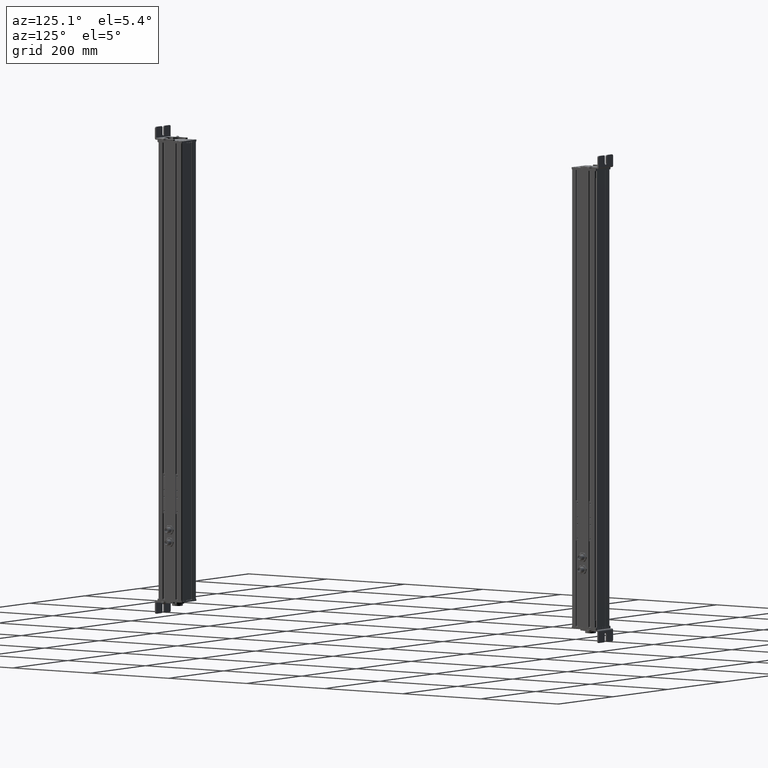
[diagram: clean part render]
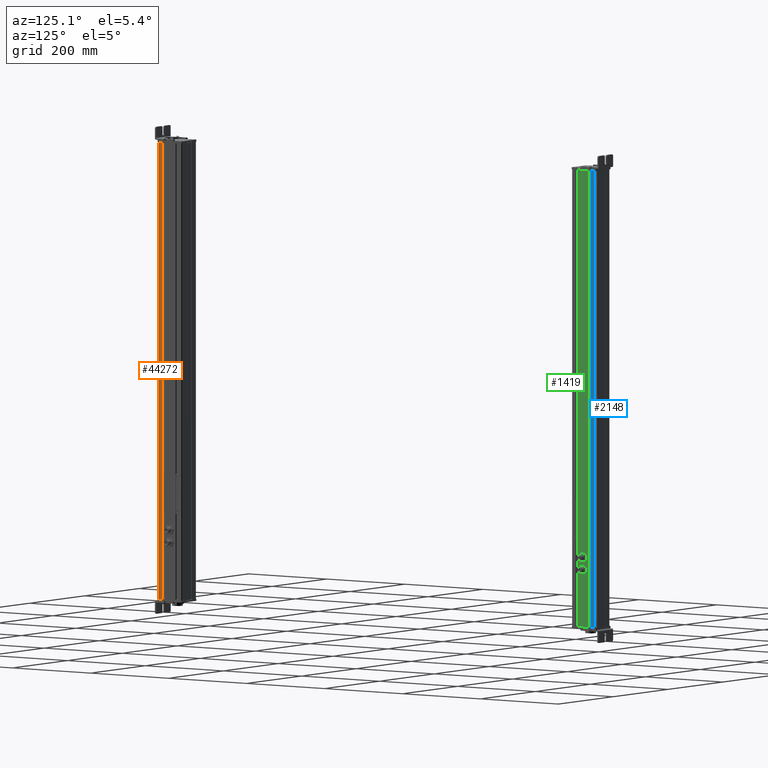
[diagram: same view with three faces highlighted in distinct colors, each labeled with its STEP entity id]
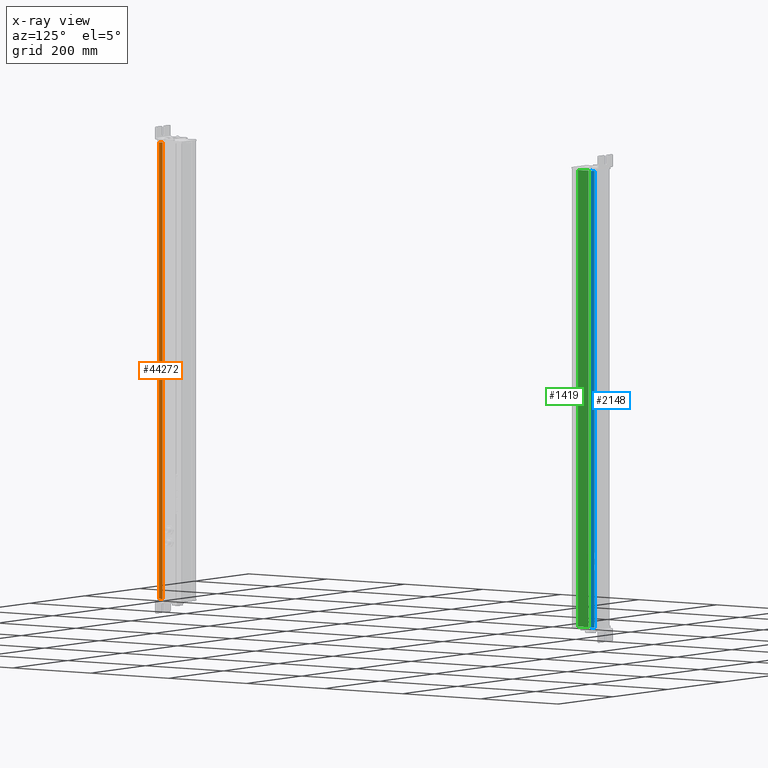
[diagram: x-ray of the same camera — body ghosted, the three highlighted faces saturated]
A machine part, auxiliary view with three faces highlighted in distinct colors.
The next image is the same camera in x-ray (body ghosted, the three faces saturated) — at least one of them is partly hidden behind the body in this view.
Their STEP definitions:

[orange] entity #44272 — the highlighted planar face has unit normal (1, 0, 0).
#44220=CARTESIAN_POINT('Vertex',(666.195883661,124.112001771,0.)) ;
#44223=CARTESIAN_POINT('Line Origine',(666.195883661,124.112001771,481.)) ;
#44227=CARTESIAN_POINT('Vertex',(666.195883661,124.112001771,962.)) ;
#44242=CARTESIAN_POINT('Axis2P3D Location',(666.195883662,171.710394004,0.)) ;
#44247=CARTESIAN_POINT('Line Origine',(666.195883662,128.589896023,0.)) ;
#44251=CARTESIAN_POINT('Vertex',(666.195883662,133.067790275,0.)) ;
#44254=CARTESIAN_POINT('Line Origine',(666.195883662,133.067790275,481.)) ;
#44258=CARTESIAN_POINT('Vertex',(666.195883662,133.067790275,962.)) ;
#44261=CARTESIAN_POINT('Line Origine',(666.195883662,128.589896023,962.)) ;
#44224=DIRECTION('Vector Direction',(0.,0.,1.)) ;
#44243=DIRECTION('Axis2P3D Direction',(1.,0.,0.)) ;
#44244=DIRECTION('Axis2P3D XDirection',(0.,1.,0.)) ;
#44248=DIRECTION('Vector Direction',(0.,1.,0.)) ;
#44255=DIRECTION('Vector Direction',(0.,0.,1.)) ;
#44262=DIRECTION('Vector Direction',(0.,1.,0.)) ;
#44245=AXIS2_PLACEMENT_3D('Plane Axis2P3D',#44242,#44243,#44244) ;
#44267=ORIENTED_EDGE('',*,*,#44229,.F.) ;
#44268=ORIENTED_EDGE('',*,*,#44253,.T.) ;
#44269=ORIENTED_EDGE('',*,*,#44260,.T.) ;
#44270=ORIENTED_EDGE('',*,*,#44265,.F.) ;
#44225=VECTOR('Line Direction',#44224,1.) ;
#44249=VECTOR('Line Direction',#44248,1.) ;
#44256=VECTOR('Line Direction',#44255,1.) ;
#44263=VECTOR('Line Direction',#44262,1.) ;
#44272=ADVANCED_FACE('Body.2',(#44271),#44246,.T.) ;
#44229=EDGE_CURVE('',#44221,#44228,#44226,.T.) ;
#44253=EDGE_CURVE('',#44221,#44252,#44250,.T.) ;
#44260=EDGE_CURVE('',#44252,#44259,#44257,.T.) ;
#44265=EDGE_CURVE('',#44228,#44259,#44264,.T.) ;
#44266=EDGE_LOOP('',(#44267,#44268,#44269,#44270)) ;
#44271=FACE_OUTER_BOUND('',#44266,.T.) ;
#44226=LINE('Line',#44223,#44225) ;
#44250=LINE('Line',#44247,#44249) ;
#44257=LINE('Line',#44254,#44256) ;
#44264=LINE('Line',#44261,#44263) ;
#44246=PLANE('Plane',#44245) ;
#44221=VERTEX_POINT('',#44220) ;
#44228=VERTEX_POINT('',#44227) ;
#44252=VERTEX_POINT('',#44251) ;
#44259=VERTEX_POINT('',#44258) ;

[blue] entity #2148 — the highlighted planar face has unit normal (1, 0, 0).
#660=CARTESIAN_POINT('Axis2P3D Location',(613.195548937,133.067790275,0.)) ;
#2101=CARTESIAN_POINT('Vertex',(613.195548938,133.067790275,0.)) ;
#2104=CARTESIAN_POINT('Line Origine',(613.195548938,133.067790275,481.)) ;
#2108=CARTESIAN_POINT('Vertex',(613.195548938,133.067790275,962.)) ;
#2123=CARTESIAN_POINT('Line Origine',(613.195548937,128.589896023,0.)) ;
#2127=CARTESIAN_POINT('Vertex',(613.195548937,124.112001771,0.)) ;
#2130=CARTESIAN_POINT('Line Origine',(613.195548937,124.112001771,481.)) ;
#2134=CARTESIAN_POINT('Vertex',(613.195548937,124.112001771,962.)) ;
#2137=CARTESIAN_POINT('Line Origine',(613.195548937,128.589896023,962.)) ;
#661=DIRECTION('Axis2P3D Direction',(-1.,0.,0.)) ;
#662=DIRECTION('Axis2P3D XDirection',(0.,-1.,0.)) ;
#2105=DIRECTION('Vector Direction',(0.,0.,1.)) ;
#2124=DIRECTION('Vector Direction',(0.,-1.,0.)) ;
#2131=DIRECTION('Vector Direction',(0.,0.,1.)) ;
#2138=DIRECTION('Vector Direction',(0.,-1.,0.)) ;
#663=AXIS2_PLACEMENT_3D('Plane Axis2P3D',#660,#661,#662) ;
#2143=ORIENTED_EDGE('',*,*,#2110,.F.) ;
#2144=ORIENTED_EDGE('',*,*,#2129,.T.) ;
#2145=ORIENTED_EDGE('',*,*,#2136,.T.) ;
#2146=ORIENTED_EDGE('',*,*,#2141,.F.) ;
#2106=VECTOR('Line Direction',#2105,1.) ;
#2125=VECTOR('Line Direction',#2124,1.) ;
#2132=VECTOR('Line Direction',#2131,1.) ;
#2139=VECTOR('Line Direction',#2138,1.) ;
#2148=ADVANCED_FACE('Body.2',(#2147),#664,.T.) ;
#2110=EDGE_CURVE('',#2102,#2109,#2107,.T.) ;
#2129=EDGE_CURVE('',#2102,#2128,#2126,.T.) ;
#2136=EDGE_CURVE('',#2128,#2135,#2133,.T.) ;
#2141=EDGE_CURVE('',#2109,#2135,#2140,.T.) ;
#2142=EDGE_LOOP('',(#2143,#2144,#2145,#2146)) ;
#2147=FACE_OUTER_BOUND('',#2142,.T.) ;
#2107=LINE('Line',#2104,#2106) ;
#2126=LINE('Line',#2123,#2125) ;
#2133=LINE('Line',#2130,#2132) ;
#2140=LINE('Line',#2137,#2139) ;
#664=PLANE('Plane',#663) ;
#2102=VERTEX_POINT('',#2101) ;
#2109=VERTEX_POINT('',#2108) ;
#2128=VERTEX_POINT('',#2127) ;
#2135=VERTEX_POINT('',#2134) ;

[green] entity #1419 — the highlighted planar face has unit normal (1, 0, 0).
#660=CARTESIAN_POINT('Axis2P3D Location',(613.195548937,133.067790275,0.)) ;
#1372=CARTESIAN_POINT('Vertex',(613.195548938,166.010394004,0.)) ;
#1375=CARTESIAN_POINT('Line Origine',(613.195548938,166.010394004,481.)) ;
#1379=CARTESIAN_POINT('Vertex',(613.195548938,166.010394004,962.)) ;
#1394=CARTESIAN_POINT('Line Origine',(613.195548937,152.38909214,0.)) ;
#1398=CARTESIAN_POINT('Vertex',(613.195548937,138.767790274,0.)) ;
#1401=CARTESIAN_POINT('Line Origine',(613.195548937,138.767790274,481.)) ;
#1405=CARTESIAN_POINT('Vertex',(613.195548937,138.767790274,962.)) ;
#1408=CARTESIAN_POINT('Line Origine',(613.195548937,152.38909214,962.)) ;
#661=DIRECTION('Axis2P3D Direction',(-1.,0.,0.)) ;
#662=DIRECTION('Axis2P3D XDirection',(0.,-1.,0.)) ;
#1376=DIRECTION('Vector Direction',(0.,0.,1.)) ;
#1395=DIRECTION('Vector Direction',(0.,-1.,0.)) ;
#1402=DIRECTION('Vector Direction',(0.,0.,1.)) ;
#1409=DIRECTION('Vector Direction',(0.,-1.,0.)) ;
#663=AXIS2_PLACEMENT_3D('Plane Axis2P3D',#660,#661,#662) ;
#1414=ORIENTED_EDGE('',*,*,#1381,.F.) ;
#1415=ORIENTED_EDGE('',*,*,#1400,.T.) ;
#1416=ORIENTED_EDGE('',*,*,#1407,.T.) ;
#1417=ORIENTED_EDGE('',*,*,#1412,.F.) ;
#1377=VECTOR('Line Direction',#1376,1.) ;
#1396=VECTOR('Line Direction',#1395,1.) ;
#1403=VECTOR('Line Direction',#1402,1.) ;
#1410=VECTOR('Line Direction',#1409,1.) ;
#1419=ADVANCED_FACE('Body.2',(#1418),#664,.T.) ;
#1381=EDGE_CURVE('',#1373,#1380,#1378,.T.) ;
#1400=EDGE_CURVE('',#1373,#1399,#1397,.T.) ;
#1407=EDGE_CURVE('',#1399,#1406,#1404,.T.) ;
#1412=EDGE_CURVE('',#1380,#1406,#1411,.T.) ;
#1413=EDGE_LOOP('',(#1414,#1415,#1416,#1417)) ;
#1418=FACE_OUTER_BOUND('',#1413,.T.) ;
#1378=LINE('Line',#1375,#1377) ;
#1397=LINE('Line',#1394,#1396) ;
#1404=LINE('Line',#1401,#1403) ;
#1411=LINE('Line',#1408,#1410) ;
#664=PLANE('Plane',#663) ;
#1373=VERTEX_POINT('',#1372) ;
#1380=VERTEX_POINT('',#1379) ;
#1399=VERTEX_POINT('',#1398) ;
#1406=VERTEX_POINT('',#1405) ;